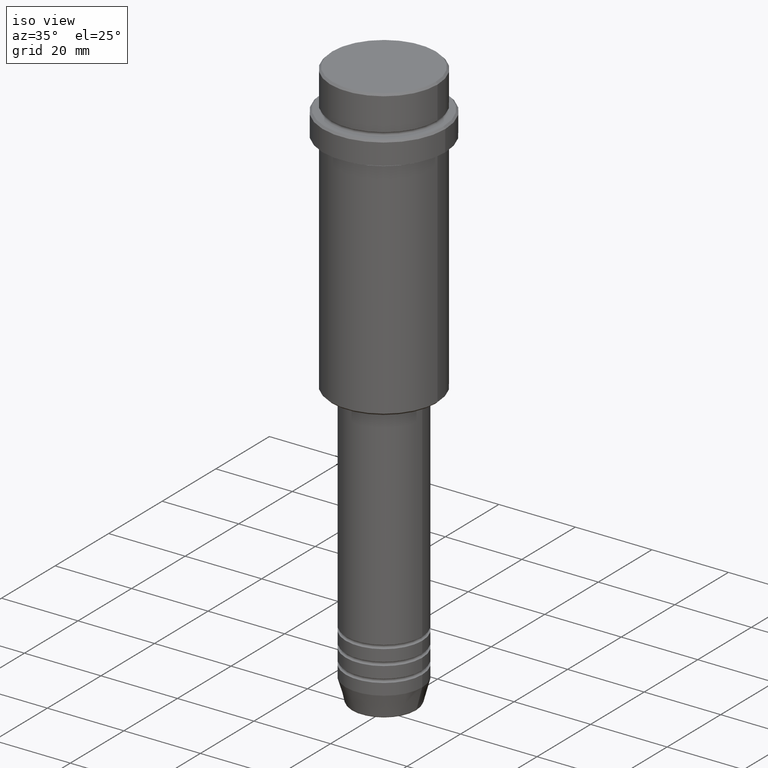
[diagram: clean part render]
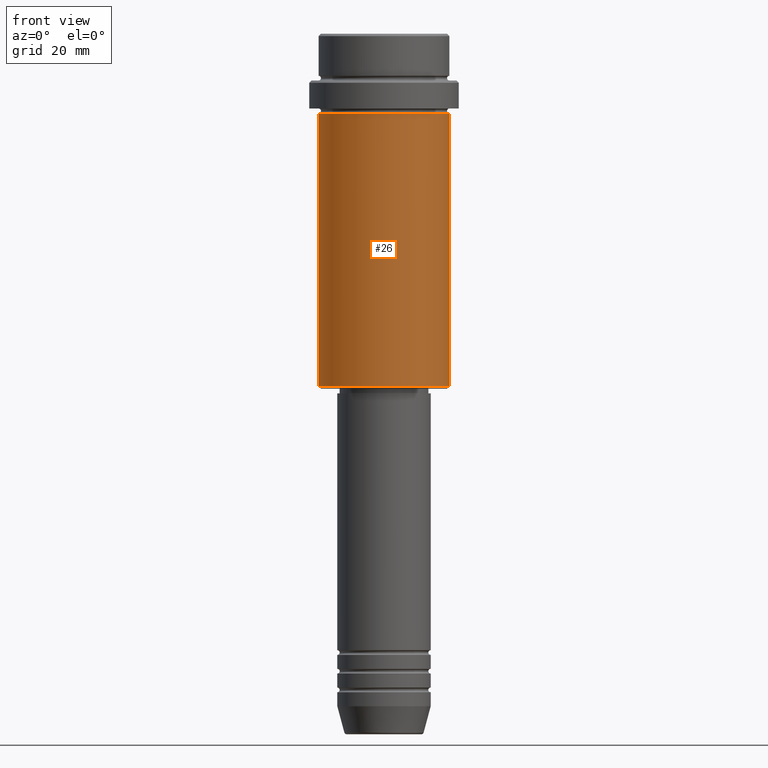
[diagram: tour spotlight — one face highlighted and labeled with its STEP entity id]
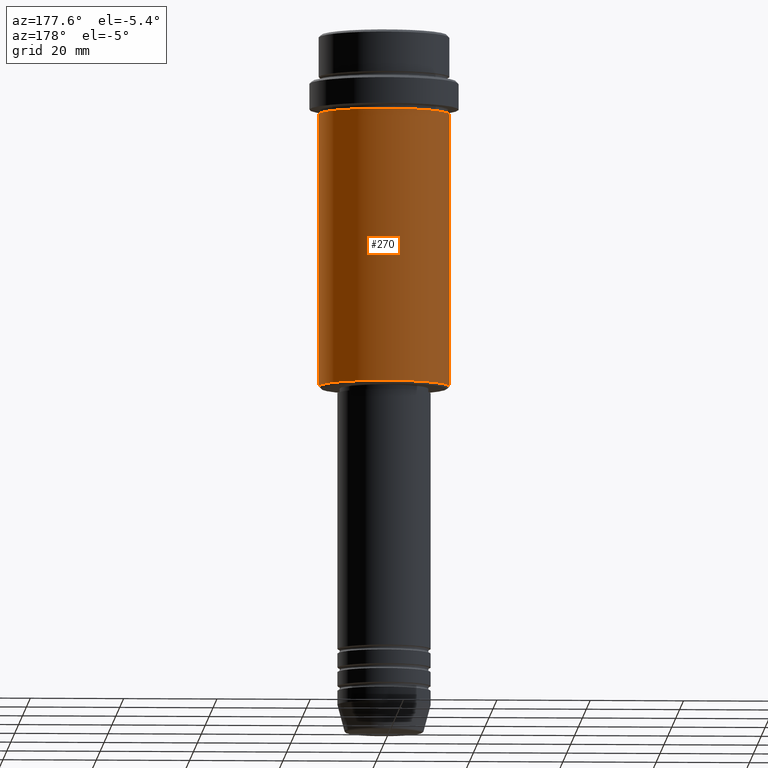
[diagram: tour spotlight — one face highlighted and labeled with its STEP entity id]
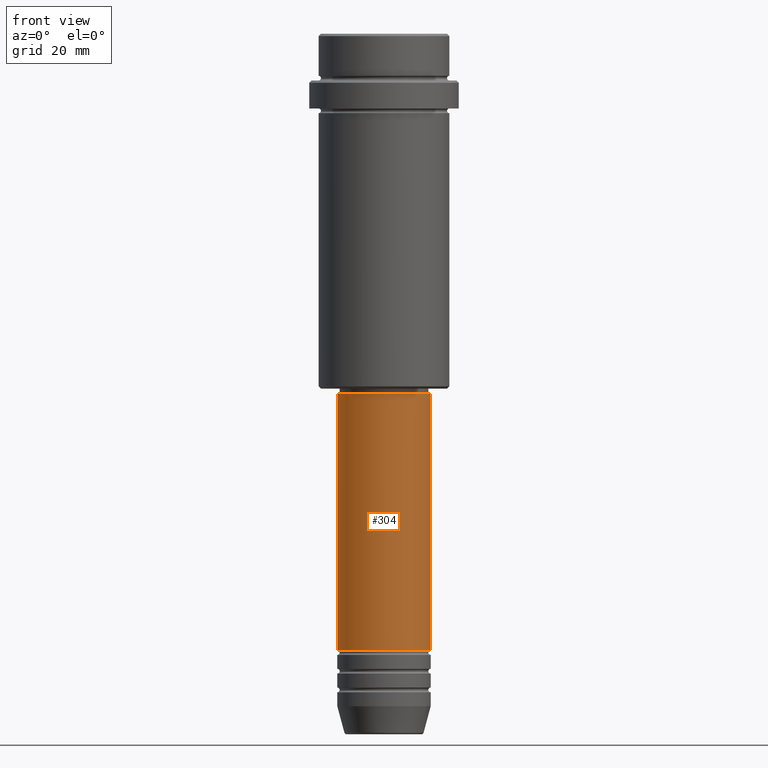
[diagram: tour spotlight — one face highlighted and labeled with its STEP entity id]
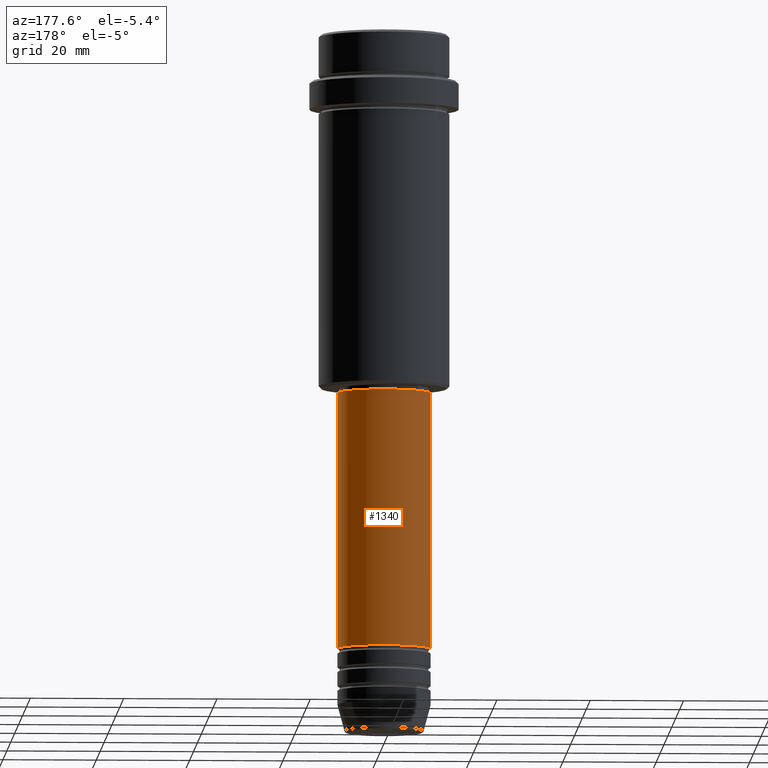
[diagram: tour spotlight — one face highlighted and labeled with its STEP entity id]
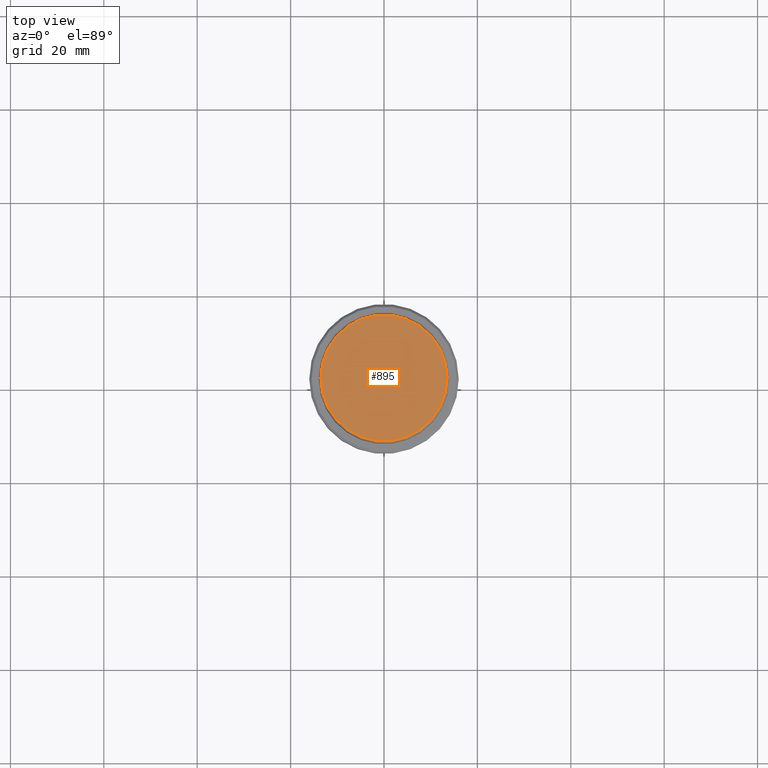
[diagram: tour spotlight — one face highlighted and labeled with its STEP entity id]
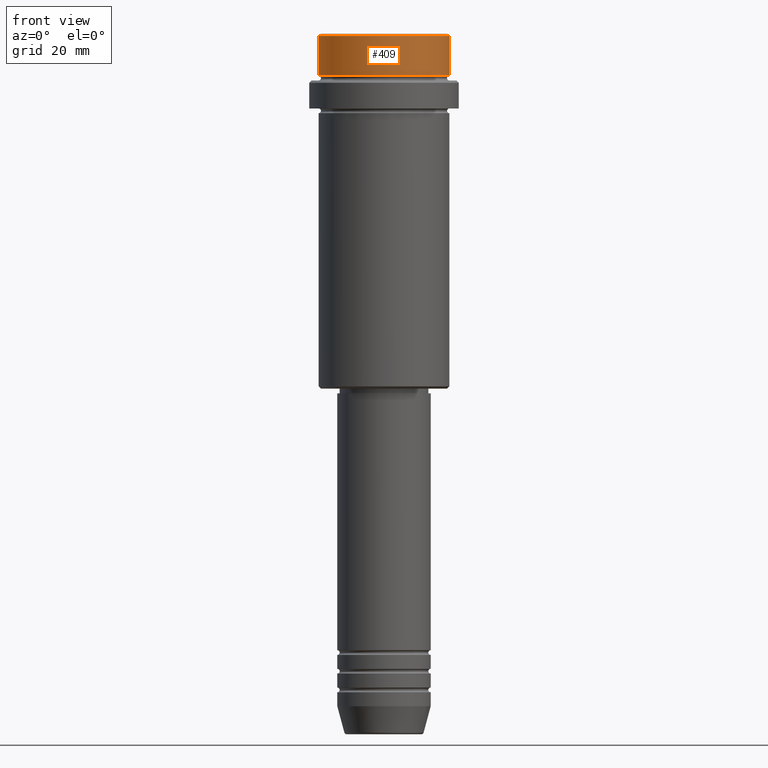
[diagram: tour spotlight — one face highlighted and labeled with its STEP entity id]
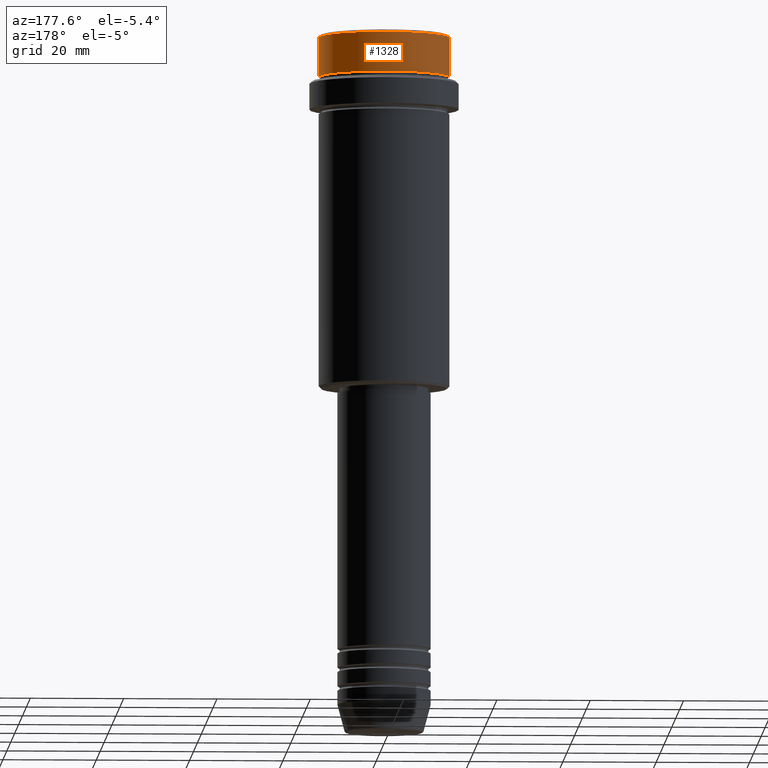
[diagram: tour spotlight — one face highlighted and labeled with its STEP entity id]
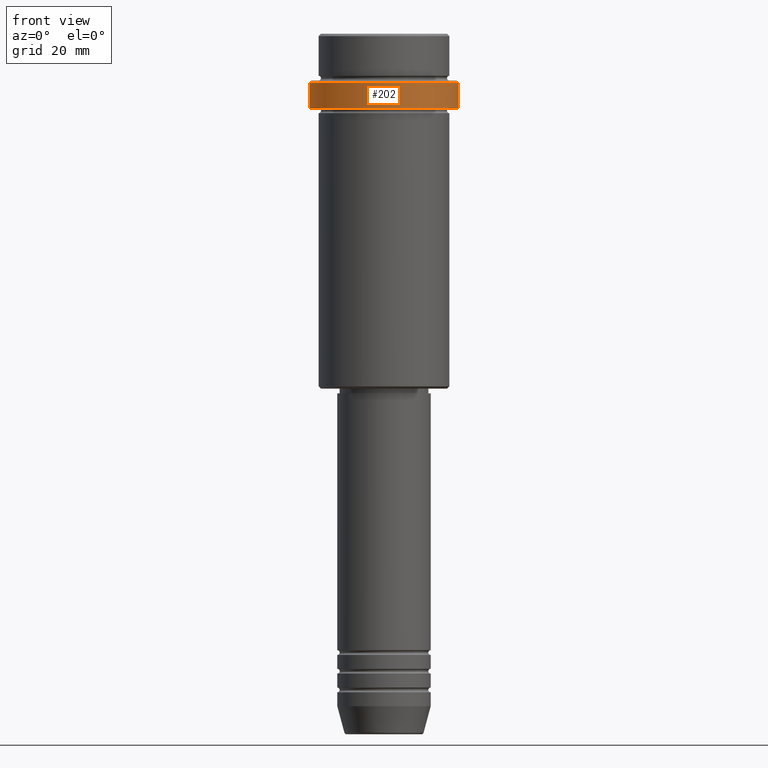
[diagram: tour spotlight — one face highlighted and labeled with its STEP entity id]
A machine part: a face-by-face anatomy tour. The part has 52 B-rep faces; the first image is the clean iso view, then the 8 largest visible faces are spotlighted one at a time (largest first), each with its STEP entity span.

Face 1 — front view, entity #26. In plain terms, the highlighted cylindrical surface (partial cylindrical patch) has radius 14 mm, axis along (-0, -0, 1).
Definition (entity closure, byte-faithful):
#5 = DIRECTION ( 'NONE',  ( -1.000000000000000000, 0.000000000000000000, 0.000000000000000000 ) ) ;
#26 = ADVANCED_FACE ( 'NONE', ( #583 ), #1365, .T. ) ;
#104 = CARTESIAN_POINT ( 'NONE',  ( -13.99999999999999112, 1.714505518806293455E-15, 0.000000000000000000 ) ) ;
#226 = VERTEX_POINT ( 'NONE', #977 ) ;
#256 = DIRECTION ( 'NONE',  ( 1.000000000000000000, 0.000000000000000000, 0.000000000000000000 ) ) ;
#257 = ORIENTED_EDGE ( 'NONE', *, *, #359, .T. ) ;
#313 = LINE ( 'NONE', #104, #1039 ) ;
#325 = AXIS2_PLACEMENT_3D ( 'NONE', #595, #1251, #256 ) ;
#359 = EDGE_CURVE ( 'NONE', #602, #412, #1239, .T. ) ;
#362 = CIRCLE ( 'NONE', #622, 13.99999999999998401 ) ;
#412 = VERTEX_POINT ( 'NONE', #599 ) ;
#482 = EDGE_CURVE ( 'NONE', #1005, #226, #362, .T. ) ;
#543 = DIRECTION ( 'NONE',  ( -0.000000000000000000, -0.000000000000000000, 1.000000000000000000 ) ) ;
#572 = EDGE_CURVE ( 'NONE', #412, #226, #1046, .T. ) ;
#583 = FACE_OUTER_BOUND ( 'NONE', #979, .T. ) ;
#595 = CARTESIAN_POINT ( 'NONE',  ( 0.000000000000000000, 0.000000000000000000, 0.000000000000000000 ) ) ;
#599 = CARTESIAN_POINT ( 'NONE',  ( 13.99999999999999112, 0.000000000000000000, -75.50000000000001421 ) ) ;
#602 = VERTEX_POINT ( 'NONE', #1174 ) ;
#612 = CARTESIAN_POINT ( 'NONE',  ( -13.99999999999998401, 1.714505518806293060E-15, -17.00000000000000355 ) ) ;
#622 = AXIS2_PLACEMENT_3D ( 'NONE', #817, #1250, #685 ) ;
#672 = AXIS2_PLACEMENT_3D ( 'NONE', #983, #1196, #5 ) ;
#685 = DIRECTION ( 'NONE',  ( 1.000000000000000000, 0.000000000000000000, 0.000000000000000000 ) ) ;
#817 = CARTESIAN_POINT ( 'NONE',  ( 0.000000000000000000, 0.000000000000000000, -17.00000000000000355 ) ) ;
#840 = DIRECTION ( 'NONE',  ( -0.000000000000000000, -0.000000000000000000, 1.000000000000000000 ) ) ;
#941 = CARTESIAN_POINT ( 'NONE',  ( 13.99999999999999112, 0.000000000000000000, 0.000000000000000000 ) ) ;
#962 = ORIENTED_EDGE ( 'NONE', *, *, #482, .F. ) ;
#977 = CARTESIAN_POINT ( 'NONE',  ( 13.99999999999998401, 0.000000000000000000, -17.00000000000000355 ) ) ;
#979 = EDGE_LOOP ( 'NONE', ( #1208, #257, #1234, #962 ) ) ;
#983 = CARTESIAN_POINT ( 'NONE',  ( 0.000000000000000000, 0.000000000000000000, -75.50000000000001421 ) ) ;
#1005 = VERTEX_POINT ( 'NONE', #612 ) ;
#1039 = VECTOR ( 'NONE', #543, 1000.000000000000000 ) ;
#1046 = LINE ( 'NONE', #941, #1195 ) ;
#1174 = CARTESIAN_POINT ( 'NONE',  ( -13.99999999999999112, 1.714505518806293455E-15, -75.50000000000001421 ) ) ;
#1195 = VECTOR ( 'NONE', #840, 1000.000000000000000 ) ;
#1196 = DIRECTION ( 'NONE',  ( -0.000000000000000000, -0.000000000000000000, 1.000000000000000000 ) ) ;
#1208 = ORIENTED_EDGE ( 'NONE', *, *, #1271, .F. ) ;
#1234 = ORIENTED_EDGE ( 'NONE', *, *, #572, .T. ) ;
#1239 = CIRCLE ( 'NONE', #672, 13.99999999999999112 ) ;
#1250 = DIRECTION ( 'NONE',  ( -0.000000000000000000, -0.000000000000000000, 1.000000000000000000 ) ) ;
#1251 = DIRECTION ( 'NONE',  ( -0.000000000000000000, -0.000000000000000000, 1.000000000000000000 ) ) ;
#1271 = EDGE_CURVE ( 'NONE', #602, #1005, #313, .T. ) ;
#1365 = CYLINDRICAL_SURFACE ( 'NONE', #325, 13.99999999999999112 ) ;

Face 2 — auxiliary view, entity #270. In plain terms, the highlighted cylindrical surface (partial cylindrical patch) has radius 14 mm, axis along (-0, -0, 1).
Definition (entity closure, byte-faithful):
#2 = ORIENTED_EDGE ( 'NONE', *, *, #943, .T. ) ;
#13 = CYLINDRICAL_SURFACE ( 'NONE', #466, 13.99999999999999112 ) ;
#21 = ORIENTED_EDGE ( 'NONE', *, *, #1271, .T. ) ;
#41 = CARTESIAN_POINT ( 'NONE',  ( 0.000000000000000000, 0.000000000000000000, -75.50000000000001421 ) ) ;
#104 = CARTESIAN_POINT ( 'NONE',  ( -13.99999999999999112, 1.714505518806293455E-15, 0.000000000000000000 ) ) ;
#216 = CIRCLE ( 'NONE', #1199, 13.99999999999998401 ) ;
#226 = VERTEX_POINT ( 'NONE', #977 ) ;
#270 = ADVANCED_FACE ( 'NONE', ( #781 ), #13, .T. ) ;
#313 = LINE ( 'NONE', #104, #1039 ) ;
#349 = DIRECTION ( 'NONE',  ( -0.000000000000000000, -0.000000000000000000, 1.000000000000000000 ) ) ;
#412 = VERTEX_POINT ( 'NONE', #599 ) ;
#443 = CARTESIAN_POINT ( 'NONE',  ( 0.000000000000000000, 0.000000000000000000, 0.000000000000000000 ) ) ;
#466 = AXIS2_PLACEMENT_3D ( 'NONE', #443, #1312, #1006 ) ;
#536 = DIRECTION ( 'NONE',  ( -0.000000000000000000, -0.000000000000000000, 1.000000000000000000 ) ) ;
#543 = DIRECTION ( 'NONE',  ( -0.000000000000000000, -0.000000000000000000, 1.000000000000000000 ) ) ;
#572 = EDGE_CURVE ( 'NONE', #412, #226, #1046, .T. ) ;
#599 = CARTESIAN_POINT ( 'NONE',  ( 13.99999999999999112, 0.000000000000000000, -75.50000000000001421 ) ) ;
#602 = VERTEX_POINT ( 'NONE', #1174 ) ;
#612 = CARTESIAN_POINT ( 'NONE',  ( -13.99999999999998401, 1.714505518806293060E-15, -17.00000000000000355 ) ) ;
#755 = CARTESIAN_POINT ( 'NONE',  ( 0.000000000000000000, 0.000000000000000000, -17.00000000000000355 ) ) ;
#781 = FACE_OUTER_BOUND ( 'NONE', #1085, .T. ) ;
#797 = DIRECTION ( 'NONE',  ( -1.000000000000000000, 0.000000000000000000, 0.000000000000000000 ) ) ;
#807 = CIRCLE ( 'NONE', #1241, 13.99999999999999112 ) ;
#840 = DIRECTION ( 'NONE',  ( -0.000000000000000000, -0.000000000000000000, 1.000000000000000000 ) ) ;
#907 = ORIENTED_EDGE ( 'NONE', *, *, #1193, .F. ) ;
#941 = CARTESIAN_POINT ( 'NONE',  ( 13.99999999999999112, 0.000000000000000000, 0.000000000000000000 ) ) ;
#943 = EDGE_CURVE ( 'NONE', #412, #602, #807, .T. ) ;
#977 = CARTESIAN_POINT ( 'NONE',  ( 13.99999999999998401, 0.000000000000000000, -17.00000000000000355 ) ) ;
#1005 = VERTEX_POINT ( 'NONE', #612 ) ;
#1006 = DIRECTION ( 'NONE',  ( 1.000000000000000000, 0.000000000000000000, 0.000000000000000000 ) ) ;
#1039 = VECTOR ( 'NONE', #543, 1000.000000000000000 ) ;
#1046 = LINE ( 'NONE', #941, #1195 ) ;
#1053 = ORIENTED_EDGE ( 'NONE', *, *, #572, .F. ) ;
#1085 = EDGE_LOOP ( 'NONE', ( #2, #21, #907, #1053 ) ) ;
#1174 = CARTESIAN_POINT ( 'NONE',  ( -13.99999999999999112, 1.714505518806293455E-15, -75.50000000000001421 ) ) ;
#1193 = EDGE_CURVE ( 'NONE', #226, #1005, #216, .T. ) ;
#1195 = VECTOR ( 'NONE', #840, 1000.000000000000000 ) ;
#1199 = AXIS2_PLACEMENT_3D ( 'NONE', #755, #536, #1302 ) ;
#1241 = AXIS2_PLACEMENT_3D ( 'NONE', #41, #349, #797 ) ;
#1271 = EDGE_CURVE ( 'NONE', #602, #1005, #313, .T. ) ;
#1302 = DIRECTION ( 'NONE',  ( 1.000000000000000000, 0.000000000000000000, 0.000000000000000000 ) ) ;
#1312 = DIRECTION ( 'NONE',  ( -0.000000000000000000, -0.000000000000000000, 1.000000000000000000 ) ) ;

Face 3 — front view, entity #304. In plain terms, the highlighted cylindrical surface (partial cylindrical patch) has radius 10 mm, axis along (-0, -0, 1).
Definition (entity closure, byte-faithful):
#50 = LINE ( 'NONE', #152, #1379 ) ;
#124 = EDGE_CURVE ( 'NONE', #575, #574, #969, .T. ) ;
#152 = CARTESIAN_POINT ( 'NONE',  ( -10.00000000000000178, 1.224646799147353454E-15, 0.000000000000000000 ) ) ;
#157 = DIRECTION ( 'NONE',  ( -0.000000000000000000, -0.000000000000000000, 1.000000000000000000 ) ) ;
#189 = AXIS2_PLACEMENT_3D ( 'NONE', #1388, #946, #1275 ) ;
#229 = DIRECTION ( 'NONE',  ( -0.000000000000000000, -0.000000000000000000, 1.000000000000000000 ) ) ;
#279 = DIRECTION ( 'NONE',  ( -0.000000000000000000, -0.000000000000000000, 1.000000000000000000 ) ) ;
#304 = ADVANCED_FACE ( 'NONE', ( #1216 ), #315, .T. ) ;
#315 = CYLINDRICAL_SURFACE ( 'NONE', #1080, 10.00000000000000178 ) ;
#404 = CARTESIAN_POINT ( 'NONE',  ( 10.00000000000000178, 0.000000000000000000, -77.00000000000000000 ) ) ;
#441 = AXIS2_PLACEMENT_3D ( 'NONE', #959, #279, #954 ) ;
#452 = ORIENTED_EDGE ( 'NONE', *, *, #1003, .F. ) ;
#521 = ORIENTED_EDGE ( 'NONE', *, *, #920, .F. ) ;
#561 = CARTESIAN_POINT ( 'NONE',  ( 0.000000000000000000, 0.000000000000000000, 0.000000000000000000 ) ) ;
#574 = VERTEX_POINT ( 'NONE', #404 ) ;
#575 = VERTEX_POINT ( 'NONE', #621 ) ;
#621 = CARTESIAN_POINT ( 'NONE',  ( 10.00000000000000000, 0.000000000000000000, -131.9999999999998863 ) ) ;
#625 = VERTEX_POINT ( 'NONE', #1272 ) ;
#726 = VERTEX_POINT ( 'NONE', #1303 ) ;
#852 = DIRECTION ( 'NONE',  ( -0.000000000000000000, -0.000000000000000000, 1.000000000000000000 ) ) ;
#909 = CIRCLE ( 'NONE', #189, 10.00000000000000000 ) ;
#920 = EDGE_CURVE ( 'NONE', #625, #726, #50, .T. ) ;
#946 = DIRECTION ( 'NONE',  ( -0.000000000000000000, -0.000000000000000000, 1.000000000000000000 ) ) ;
#954 = DIRECTION ( 'NONE',  ( 1.000000000000000000, 0.000000000000000000, 0.000000000000000000 ) ) ;
#959 = CARTESIAN_POINT ( 'NONE',  ( 0.000000000000000000, 0.000000000000000000, -77.00000000000000000 ) ) ;
#969 = LINE ( 'NONE', #1182, #1017 ) ;
#1003 = EDGE_CURVE ( 'NONE', #726, #574, #1404, .T. ) ;
#1017 = VECTOR ( 'NONE', #852, 1000.000000000000000 ) ;
#1029 = EDGE_CURVE ( 'NONE', #625, #575, #909, .T. ) ;
#1080 = AXIS2_PLACEMENT_3D ( 'NONE', #561, #229, #1414 ) ;
#1101 = ORIENTED_EDGE ( 'NONE', *, *, #124, .T. ) ;
#1182 = CARTESIAN_POINT ( 'NONE',  ( 10.00000000000000178, 0.000000000000000000, 0.000000000000000000 ) ) ;
#1216 = FACE_OUTER_BOUND ( 'NONE', #1269, .T. ) ;
#1269 = EDGE_LOOP ( 'NONE', ( #521, #1398, #1101, #452 ) ) ;
#1272 = CARTESIAN_POINT ( 'NONE',  ( -10.00000000000000000, 1.224646799147353256E-15, -131.9999999999998863 ) ) ;
#1275 = DIRECTION ( 'NONE',  ( 1.000000000000000000, 0.000000000000000000, 0.000000000000000000 ) ) ;
#1303 = CARTESIAN_POINT ( 'NONE',  ( -10.00000000000000178, 1.224646799147353454E-15, -77.00000000000000000 ) ) ;
#1379 = VECTOR ( 'NONE', #157, 1000.000000000000000 ) ;
#1388 = CARTESIAN_POINT ( 'NONE',  ( 0.000000000000000000, 0.000000000000000000, -131.9999999999998863 ) ) ;
#1398 = ORIENTED_EDGE ( 'NONE', *, *, #1029, .T. ) ;
#1404 = CIRCLE ( 'NONE', #441, 10.00000000000000178 ) ;
#1414 = DIRECTION ( 'NONE',  ( 1.000000000000000000, 0.000000000000000000, 0.000000000000000000 ) ) ;

Face 4 — auxiliary view, entity #1340. In plain terms, the highlighted cylindrical surface (partial cylindrical patch) has radius 10 mm, axis along (-0, -0, 1).
Definition (entity closure, byte-faithful):
#50 = LINE ( 'NONE', #152, #1379 ) ;
#108 = ORIENTED_EDGE ( 'NONE', *, *, #1021, .F. ) ;
#124 = EDGE_CURVE ( 'NONE', #575, #574, #969, .T. ) ;
#148 = EDGE_LOOP ( 'NONE', ( #535, #1007, #108, #1274 ) ) ;
#152 = CARTESIAN_POINT ( 'NONE',  ( -10.00000000000000178, 1.224646799147353454E-15, 0.000000000000000000 ) ) ;
#157 = DIRECTION ( 'NONE',  ( -0.000000000000000000, -0.000000000000000000, 1.000000000000000000 ) ) ;
#281 = CARTESIAN_POINT ( 'NONE',  ( 0.000000000000000000, 0.000000000000000000, -131.9999999999998863 ) ) ;
#402 = CARTESIAN_POINT ( 'NONE',  ( 0.000000000000000000, 0.000000000000000000, -77.00000000000000000 ) ) ;
#404 = CARTESIAN_POINT ( 'NONE',  ( 10.00000000000000178, 0.000000000000000000, -77.00000000000000000 ) ) ;
#408 = DIRECTION ( 'NONE',  ( -0.000000000000000000, -0.000000000000000000, 1.000000000000000000 ) ) ;
#481 = DIRECTION ( 'NONE',  ( -0.000000000000000000, -0.000000000000000000, 1.000000000000000000 ) ) ;
#535 = ORIENTED_EDGE ( 'NONE', *, *, #607, .T. ) ;
#574 = VERTEX_POINT ( 'NONE', #404 ) ;
#575 = VERTEX_POINT ( 'NONE', #621 ) ;
#607 = EDGE_CURVE ( 'NONE', #575, #625, #1081, .T. ) ;
#621 = CARTESIAN_POINT ( 'NONE',  ( 10.00000000000000000, 0.000000000000000000, -131.9999999999998863 ) ) ;
#625 = VERTEX_POINT ( 'NONE', #1272 ) ;
#653 = CIRCLE ( 'NONE', #972, 10.00000000000000178 ) ;
#726 = VERTEX_POINT ( 'NONE', #1303 ) ;
#844 = DIRECTION ( 'NONE',  ( 1.000000000000000000, 0.000000000000000000, 0.000000000000000000 ) ) ;
#852 = DIRECTION ( 'NONE',  ( -0.000000000000000000, -0.000000000000000000, 1.000000000000000000 ) ) ;
#920 = EDGE_CURVE ( 'NONE', #625, #726, #50, .T. ) ;
#934 = FACE_OUTER_BOUND ( 'NONE', #148, .T. ) ;
#969 = LINE ( 'NONE', #1182, #1017 ) ;
#972 = AXIS2_PLACEMENT_3D ( 'NONE', #402, #408, #844 ) ;
#1007 = ORIENTED_EDGE ( 'NONE', *, *, #920, .T. ) ;
#1017 = VECTOR ( 'NONE', #852, 1000.000000000000000 ) ;
#1021 = EDGE_CURVE ( 'NONE', #574, #726, #653, .T. ) ;
#1033 = CARTESIAN_POINT ( 'NONE',  ( 0.000000000000000000, 0.000000000000000000, 0.000000000000000000 ) ) ;
#1043 = DIRECTION ( 'NONE',  ( 1.000000000000000000, 0.000000000000000000, 0.000000000000000000 ) ) ;
#1081 = CIRCLE ( 'NONE', #1282, 10.00000000000000000 ) ;
#1155 = DIRECTION ( 'NONE',  ( 1.000000000000000000, 0.000000000000000000, 0.000000000000000000 ) ) ;
#1182 = CARTESIAN_POINT ( 'NONE',  ( 10.00000000000000178, 0.000000000000000000, 0.000000000000000000 ) ) ;
#1253 = CYLINDRICAL_SURFACE ( 'NONE', #1383, 10.00000000000000178 ) ;
#1272 = CARTESIAN_POINT ( 'NONE',  ( -10.00000000000000000, 1.224646799147353256E-15, -131.9999999999998863 ) ) ;
#1274 = ORIENTED_EDGE ( 'NONE', *, *, #124, .F. ) ;
#1282 = AXIS2_PLACEMENT_3D ( 'NONE', #281, #1382, #1155 ) ;
#1303 = CARTESIAN_POINT ( 'NONE',  ( -10.00000000000000178, 1.224646799147353454E-15, -77.00000000000000000 ) ) ;
#1340 = ADVANCED_FACE ( 'NONE', ( #934 ), #1253, .T. ) ;
#1379 = VECTOR ( 'NONE', #157, 1000.000000000000000 ) ;
#1382 = DIRECTION ( 'NONE',  ( -0.000000000000000000, -0.000000000000000000, 1.000000000000000000 ) ) ;
#1383 = AXIS2_PLACEMENT_3D ( 'NONE', #1033, #481, #1043 ) ;

Face 5 — top view, entity #895. In plain terms, the highlighted planar face has unit normal (0, -0, 1).
Definition (entity closure, byte-faithful):
#22 = VERTEX_POINT ( 'NONE', #154 ) ;
#24 = ORIENTED_EDGE ( 'NONE', *, *, #88, .T. ) ;
#27 = CARTESIAN_POINT ( 'NONE',  ( 0.000000000000000000, 0.000000000000000000, 0.000000000000000000 ) ) ;
#88 = EDGE_CURVE ( 'NONE', #866, #22, #560, .T. ) ;
#154 = CARTESIAN_POINT ( 'NONE',  ( 13.49999999999998401, 1.683889348827609273E-15, 0.000000000000000000 ) ) ;
#242 = DIRECTION ( 'NONE',  ( 1.000000000000000000, 0.000000000000000000, 0.000000000000000000 ) ) ;
#252 = DIRECTION ( 'NONE',  ( 1.000000000000000000, 0.000000000000000000, 0.000000000000000000 ) ) ;
#322 = CIRCLE ( 'NONE', #881, 13.49999999999998401 ) ;
#364 = ORIENTED_EDGE ( 'NONE', *, *, #939, .T. ) ;
#472 = CARTESIAN_POINT ( 'NONE',  ( -13.49999999999998401, 0.000000000000000000, 0.000000000000000000 ) ) ;
#499 = DIRECTION ( 'NONE',  ( 1.000000000000000000, 0.000000000000000000, 0.000000000000000000 ) ) ;
#560 = CIRCLE ( 'NONE', #647, 13.49999999999998401 ) ;
#633 = DIRECTION ( 'NONE',  ( -0.000000000000000000, -0.000000000000000000, 1.000000000000000000 ) ) ;
#647 = AXIS2_PLACEMENT_3D ( 'NONE', #1288, #633, #499 ) ;
#707 = PLANE ( 'NONE',  #833 ) ;
#816 = FACE_OUTER_BOUND ( 'NONE', #827, .T. ) ;
#827 = EDGE_LOOP ( 'NONE', ( #24, #364 ) ) ;
#833 = AXIS2_PLACEMENT_3D ( 'NONE', #27, #1144, #242 ) ;
#866 = VERTEX_POINT ( 'NONE', #472 ) ;
#881 = AXIS2_PLACEMENT_3D ( 'NONE', #1337, #1236, #252 ) ;
#895 = ADVANCED_FACE ( 'NONE', ( #816 ), #707, .T. ) ;
#939 = EDGE_CURVE ( 'NONE', #22, #866, #322, .T. ) ;
#1144 = DIRECTION ( 'NONE',  ( 0.000000000000000000, -0.000000000000000000, 1.000000000000000000 ) ) ;
#1236 = DIRECTION ( 'NONE',  ( -0.000000000000000000, -0.000000000000000000, 1.000000000000000000 ) ) ;
#1288 = CARTESIAN_POINT ( 'NONE',  ( 0.000000000000000000, 0.000000000000000000, 0.000000000000000000 ) ) ;
#1337 = CARTESIAN_POINT ( 'NONE',  ( 0.000000000000000000, 0.000000000000000000, 0.000000000000000000 ) ) ;

Face 6 — front view, entity #409. In plain terms, the highlighted cylindrical surface (partial cylindrical patch) has radius 14 mm, axis along (-0, -0, 1).
Definition (entity closure, byte-faithful):
#39 = CIRCLE ( 'NONE', #1380, 13.99999999999998401 ) ;
#48 = CARTESIAN_POINT ( 'NONE',  ( 13.99999999999999112, 0.000000000000000000, -0.5000000000000125455 ) ) ;
#118 = AXIS2_PLACEMENT_3D ( 'NONE', #922, #265, #802 ) ;
#191 = VECTOR ( 'NONE', #564, 1000.000000000000000 ) ;
#218 = CARTESIAN_POINT ( 'NONE',  ( -13.99999999999999112, 1.714505518806293455E-15, -0.5000000000000125455 ) ) ;
#231 = VERTEX_POINT ( 'NONE', #218 ) ;
#241 = DIRECTION ( 'NONE',  ( 0.000000000000000000, 0.000000000000000000, -1.000000000000000000 ) ) ;
#265 = DIRECTION ( 'NONE',  ( -0.000000000000000000, -0.000000000000000000, 1.000000000000000000 ) ) ;
#269 = DIRECTION ( 'NONE',  ( 1.000000000000000000, 0.000000000000000000, 0.000000000000000000 ) ) ;
#299 = CARTESIAN_POINT ( 'NONE',  ( 0.000000000000000000, 0.000000000000000000, -8.999999999999998224 ) ) ;
#409 = ADVANCED_FACE ( 'NONE', ( #594 ), #1125, .T. ) ;
#451 = ORIENTED_EDGE ( 'NONE', *, *, #722, .T. ) ;
#462 = VECTOR ( 'NONE', #886, 1000.000000000000000 ) ;
#564 = DIRECTION ( 'NONE',  ( -0.000000000000000000, -0.000000000000000000, 1.000000000000000000 ) ) ;
#594 = FACE_OUTER_BOUND ( 'NONE', #1364, .T. ) ;
#611 = CARTESIAN_POINT ( 'NONE',  ( 0.000000000000000000, 0.000000000000000000, -0.5000000000000125455 ) ) ;
#713 = DIRECTION ( 'NONE',  ( 1.000000000000000000, 0.000000000000000000, 0.000000000000000000 ) ) ;
#722 = EDGE_CURVE ( 'NONE', #861, #1317, #772, .T. ) ;
#753 = ORIENTED_EDGE ( 'NONE', *, *, #1309, .F. ) ;
#772 = LINE ( 'NONE', #876, #462 ) ;
#802 = DIRECTION ( 'NONE',  ( 1.000000000000000000, 0.000000000000000000, 0.000000000000000000 ) ) ;
#861 = VERTEX_POINT ( 'NONE', #1131 ) ;
#876 = CARTESIAN_POINT ( 'NONE',  ( 13.99999999999999112, 0.000000000000000000, 0.000000000000000000 ) ) ;
#886 = DIRECTION ( 'NONE',  ( -0.000000000000000000, -0.000000000000000000, 1.000000000000000000 ) ) ;
#892 = ORIENTED_EDGE ( 'NONE', *, *, #1357, .T. ) ;
#897 = VERTEX_POINT ( 'NONE', #1249 ) ;
#922 = CARTESIAN_POINT ( 'NONE',  ( 0.000000000000000000, 0.000000000000000000, 0.000000000000000000 ) ) ;
#924 = LINE ( 'NONE', #1360, #191 ) ;
#984 = EDGE_CURVE ( 'NONE', #897, #861, #39, .T. ) ;
#1125 = CYLINDRICAL_SURFACE ( 'NONE', #118, 13.99999999999999112 ) ;
#1131 = CARTESIAN_POINT ( 'NONE',  ( 13.99999999999998401, 0.000000000000000000, -8.999999999999998224 ) ) ;
#1205 = ORIENTED_EDGE ( 'NONE', *, *, #984, .T. ) ;
#1244 = AXIS2_PLACEMENT_3D ( 'NONE', #611, #241, #269 ) ;
#1249 = CARTESIAN_POINT ( 'NONE',  ( -13.99999999999998401, 1.714505518806293060E-15, -8.999999999999998224 ) ) ;
#1290 = CIRCLE ( 'NONE', #1244, 13.99999999999999112 ) ;
#1309 = EDGE_CURVE ( 'NONE', #897, #231, #924, .T. ) ;
#1317 = VERTEX_POINT ( 'NONE', #48 ) ;
#1357 = EDGE_CURVE ( 'NONE', #1317, #231, #1290, .T. ) ;
#1360 = CARTESIAN_POINT ( 'NONE',  ( -13.99999999999999112, 1.714505518806293455E-15, 0.000000000000000000 ) ) ;
#1362 = DIRECTION ( 'NONE',  ( -0.000000000000000000, -0.000000000000000000, 1.000000000000000000 ) ) ;
#1364 = EDGE_LOOP ( 'NONE', ( #753, #1205, #451, #892 ) ) ;
#1380 = AXIS2_PLACEMENT_3D ( 'NONE', #299, #1362, #713 ) ;

Face 7 — auxiliary view, entity #1328. In plain terms, the highlighted cylindrical surface (partial cylindrical patch) has radius 14 mm, axis along (-0, -0, 1).
Definition (entity closure, byte-faithful):
#46 = CARTESIAN_POINT ( 'NONE',  ( 0.000000000000000000, 0.000000000000000000, -8.999999999999998224 ) ) ;
#48 = CARTESIAN_POINT ( 'NONE',  ( 13.99999999999999112, 0.000000000000000000, -0.5000000000000125455 ) ) ;
#155 = CYLINDRICAL_SURFACE ( 'NONE', #490, 13.99999999999999112 ) ;
#161 = CIRCLE ( 'NONE', #413, 13.99999999999998401 ) ;
#173 = EDGE_CURVE ( 'NONE', #231, #1317, #217, .T. ) ;
#174 = DIRECTION ( 'NONE',  ( -0.000000000000000000, -0.000000000000000000, 1.000000000000000000 ) ) ;
#191 = VECTOR ( 'NONE', #564, 1000.000000000000000 ) ;
#217 = CIRCLE ( 'NONE', #512, 13.99999999999999112 ) ;
#218 = CARTESIAN_POINT ( 'NONE',  ( -13.99999999999999112, 1.714505518806293455E-15, -0.5000000000000125455 ) ) ;
#231 = VERTEX_POINT ( 'NONE', #218 ) ;
#306 = ORIENTED_EDGE ( 'NONE', *, *, #173, .T. ) ;
#328 = ORIENTED_EDGE ( 'NONE', *, *, #722, .F. ) ;
#413 = AXIS2_PLACEMENT_3D ( 'NONE', #46, #174, #724 ) ;
#422 = CARTESIAN_POINT ( 'NONE',  ( 0.000000000000000000, 0.000000000000000000, -0.5000000000000125455 ) ) ;
#453 = DIRECTION ( 'NONE',  ( 1.000000000000000000, 0.000000000000000000, 0.000000000000000000 ) ) ;
#462 = VECTOR ( 'NONE', #886, 1000.000000000000000 ) ;
#490 = AXIS2_PLACEMENT_3D ( 'NONE', #940, #603, #453 ) ;
#512 = AXIS2_PLACEMENT_3D ( 'NONE', #422, #530, #961 ) ;
#530 = DIRECTION ( 'NONE',  ( 0.000000000000000000, 0.000000000000000000, -1.000000000000000000 ) ) ;
#540 = EDGE_CURVE ( 'NONE', #861, #897, #161, .T. ) ;
#542 = ORIENTED_EDGE ( 'NONE', *, *, #1309, .T. ) ;
#564 = DIRECTION ( 'NONE',  ( -0.000000000000000000, -0.000000000000000000, 1.000000000000000000 ) ) ;
#596 = FACE_OUTER_BOUND ( 'NONE', #1146, .T. ) ;
#603 = DIRECTION ( 'NONE',  ( -0.000000000000000000, -0.000000000000000000, 1.000000000000000000 ) ) ;
#722 = EDGE_CURVE ( 'NONE', #861, #1317, #772, .T. ) ;
#724 = DIRECTION ( 'NONE',  ( 1.000000000000000000, 0.000000000000000000, 0.000000000000000000 ) ) ;
#772 = LINE ( 'NONE', #876, #462 ) ;
#861 = VERTEX_POINT ( 'NONE', #1131 ) ;
#876 = CARTESIAN_POINT ( 'NONE',  ( 13.99999999999999112, 0.000000000000000000, 0.000000000000000000 ) ) ;
#886 = DIRECTION ( 'NONE',  ( -0.000000000000000000, -0.000000000000000000, 1.000000000000000000 ) ) ;
#897 = VERTEX_POINT ( 'NONE', #1249 ) ;
#914 = ORIENTED_EDGE ( 'NONE', *, *, #540, .T. ) ;
#924 = LINE ( 'NONE', #1360, #191 ) ;
#940 = CARTESIAN_POINT ( 'NONE',  ( 0.000000000000000000, 0.000000000000000000, 0.000000000000000000 ) ) ;
#961 = DIRECTION ( 'NONE',  ( 1.000000000000000000, 0.000000000000000000, 0.000000000000000000 ) ) ;
#1131 = CARTESIAN_POINT ( 'NONE',  ( 13.99999999999998401, 0.000000000000000000, -8.999999999999998224 ) ) ;
#1146 = EDGE_LOOP ( 'NONE', ( #914, #542, #306, #328 ) ) ;
#1249 = CARTESIAN_POINT ( 'NONE',  ( -13.99999999999998401, 1.714505518806293060E-15, -8.999999999999998224 ) ) ;
#1309 = EDGE_CURVE ( 'NONE', #897, #231, #924, .T. ) ;
#1317 = VERTEX_POINT ( 'NONE', #48 ) ;
#1328 = ADVANCED_FACE ( 'NONE', ( #596 ), #155, .T. ) ;
#1360 = CARTESIAN_POINT ( 'NONE',  ( -13.99999999999999112, 1.714505518806293455E-15, 0.000000000000000000 ) ) ;

Face 8 — front view, entity #202. In plain terms, the highlighted cylindrical surface (partial cylindrical patch) has radius 16 mm, axis along (-0, -0, 1).
Definition (entity closure, byte-faithful):
#67 = CARTESIAN_POINT ( 'NONE',  ( -15.99999999999998579, 1.959434878635763554E-15, -16.00000000000000000 ) ) ;
#86 = VERTEX_POINT ( 'NONE', #67 ) ;
#130 = EDGE_CURVE ( 'NONE', #86, #296, #1384, .T. ) ;
#145 = ORIENTED_EDGE ( 'NONE', *, *, #130, .F. ) ;
#165 = EDGE_LOOP ( 'NONE', ( #145, #632, #321, #474 ) ) ;
#170 = DIRECTION ( 'NONE',  ( 1.000000000000000000, 0.000000000000000000, 0.000000000000000000 ) ) ;
#181 = CARTESIAN_POINT ( 'NONE',  ( 15.99999999999998579, 0.000000000000000000, 0.000000000000000000 ) ) ;
#202 = ADVANCED_FACE ( 'NONE', ( #725 ), #730, .T. ) ;
#224 = EDGE_CURVE ( 'NONE', #958, #786, #1169, .T. ) ;
#233 = CARTESIAN_POINT ( 'NONE',  ( 15.99999999999998579, 0.000000000000000000, -10.49999999999997158 ) ) ;
#247 = CARTESIAN_POINT ( 'NONE',  ( 15.99999999999998579, 0.000000000000000000, -16.00000000000000000 ) ) ;
#261 = EDGE_CURVE ( 'NONE', #786, #296, #1154, .T. ) ;
#296 = VERTEX_POINT ( 'NONE', #1306 ) ;
#321 = ORIENTED_EDGE ( 'NONE', *, *, #224, .T. ) ;
#336 = DIRECTION ( 'NONE',  ( -0.000000000000000000, -0.000000000000000000, 1.000000000000000000 ) ) ;
#474 = ORIENTED_EDGE ( 'NONE', *, *, #261, .T. ) ;
#538 = AXIS2_PLACEMENT_3D ( 'NONE', #1320, #678, #901 ) ;
#623 = CARTESIAN_POINT ( 'NONE',  ( -15.99999999999998579, 1.959434878635763554E-15, 0.000000000000000000 ) ) ;
#632 = ORIENTED_EDGE ( 'NONE', *, *, #683, .T. ) ;
#638 = DIRECTION ( 'NONE',  ( -0.000000000000000000, -0.000000000000000000, 1.000000000000000000 ) ) ;
#678 = DIRECTION ( 'NONE',  ( 0.000000000000000000, 0.000000000000000000, -1.000000000000000000 ) ) ;
#683 = EDGE_CURVE ( 'NONE', #86, #958, #1197, .T. ) ;
#725 = FACE_OUTER_BOUND ( 'NONE', #165, .T. ) ;
#730 = CYLINDRICAL_SURFACE ( 'NONE', #1405, 15.99999999999998579 ) ;
#751 = DIRECTION ( 'NONE',  ( -0.000000000000000000, -0.000000000000000000, 1.000000000000000000 ) ) ;
#786 = VERTEX_POINT ( 'NONE', #233 ) ;
#901 = DIRECTION ( 'NONE',  ( 1.000000000000000000, 0.000000000000000000, 0.000000000000000000 ) ) ;
#958 = VERTEX_POINT ( 'NONE', #247 ) ;
#988 = CARTESIAN_POINT ( 'NONE',  ( 0.000000000000000000, 0.000000000000000000, -16.00000000000000000 ) ) ;
#999 = DIRECTION ( 'NONE',  ( -0.000000000000000000, -0.000000000000000000, 1.000000000000000000 ) ) ;
#1038 = AXIS2_PLACEMENT_3D ( 'NONE', #988, #336, #1091 ) ;
#1091 = DIRECTION ( 'NONE',  ( 1.000000000000000000, 0.000000000000000000, 0.000000000000000000 ) ) ;
#1154 = CIRCLE ( 'NONE', #538, 15.99999999999998579 ) ;
#1169 = LINE ( 'NONE', #181, #1200 ) ;
#1177 = VECTOR ( 'NONE', #638, 1000.000000000000000 ) ;
#1197 = CIRCLE ( 'NONE', #1038, 15.99999999999998579 ) ;
#1200 = VECTOR ( 'NONE', #999, 1000.000000000000000 ) ;
#1295 = CARTESIAN_POINT ( 'NONE',  ( 0.000000000000000000, 0.000000000000000000, 0.000000000000000000 ) ) ;
#1306 = CARTESIAN_POINT ( 'NONE',  ( -15.99999999999998579, 1.959434878635763554E-15, -10.49999999999997158 ) ) ;
#1320 = CARTESIAN_POINT ( 'NONE',  ( 0.000000000000000000, 0.000000000000000000, -10.49999999999997158 ) ) ;
#1384 = LINE ( 'NONE', #623, #1177 ) ;
#1405 = AXIS2_PLACEMENT_3D ( 'NONE', #1295, #751, #170 ) ;